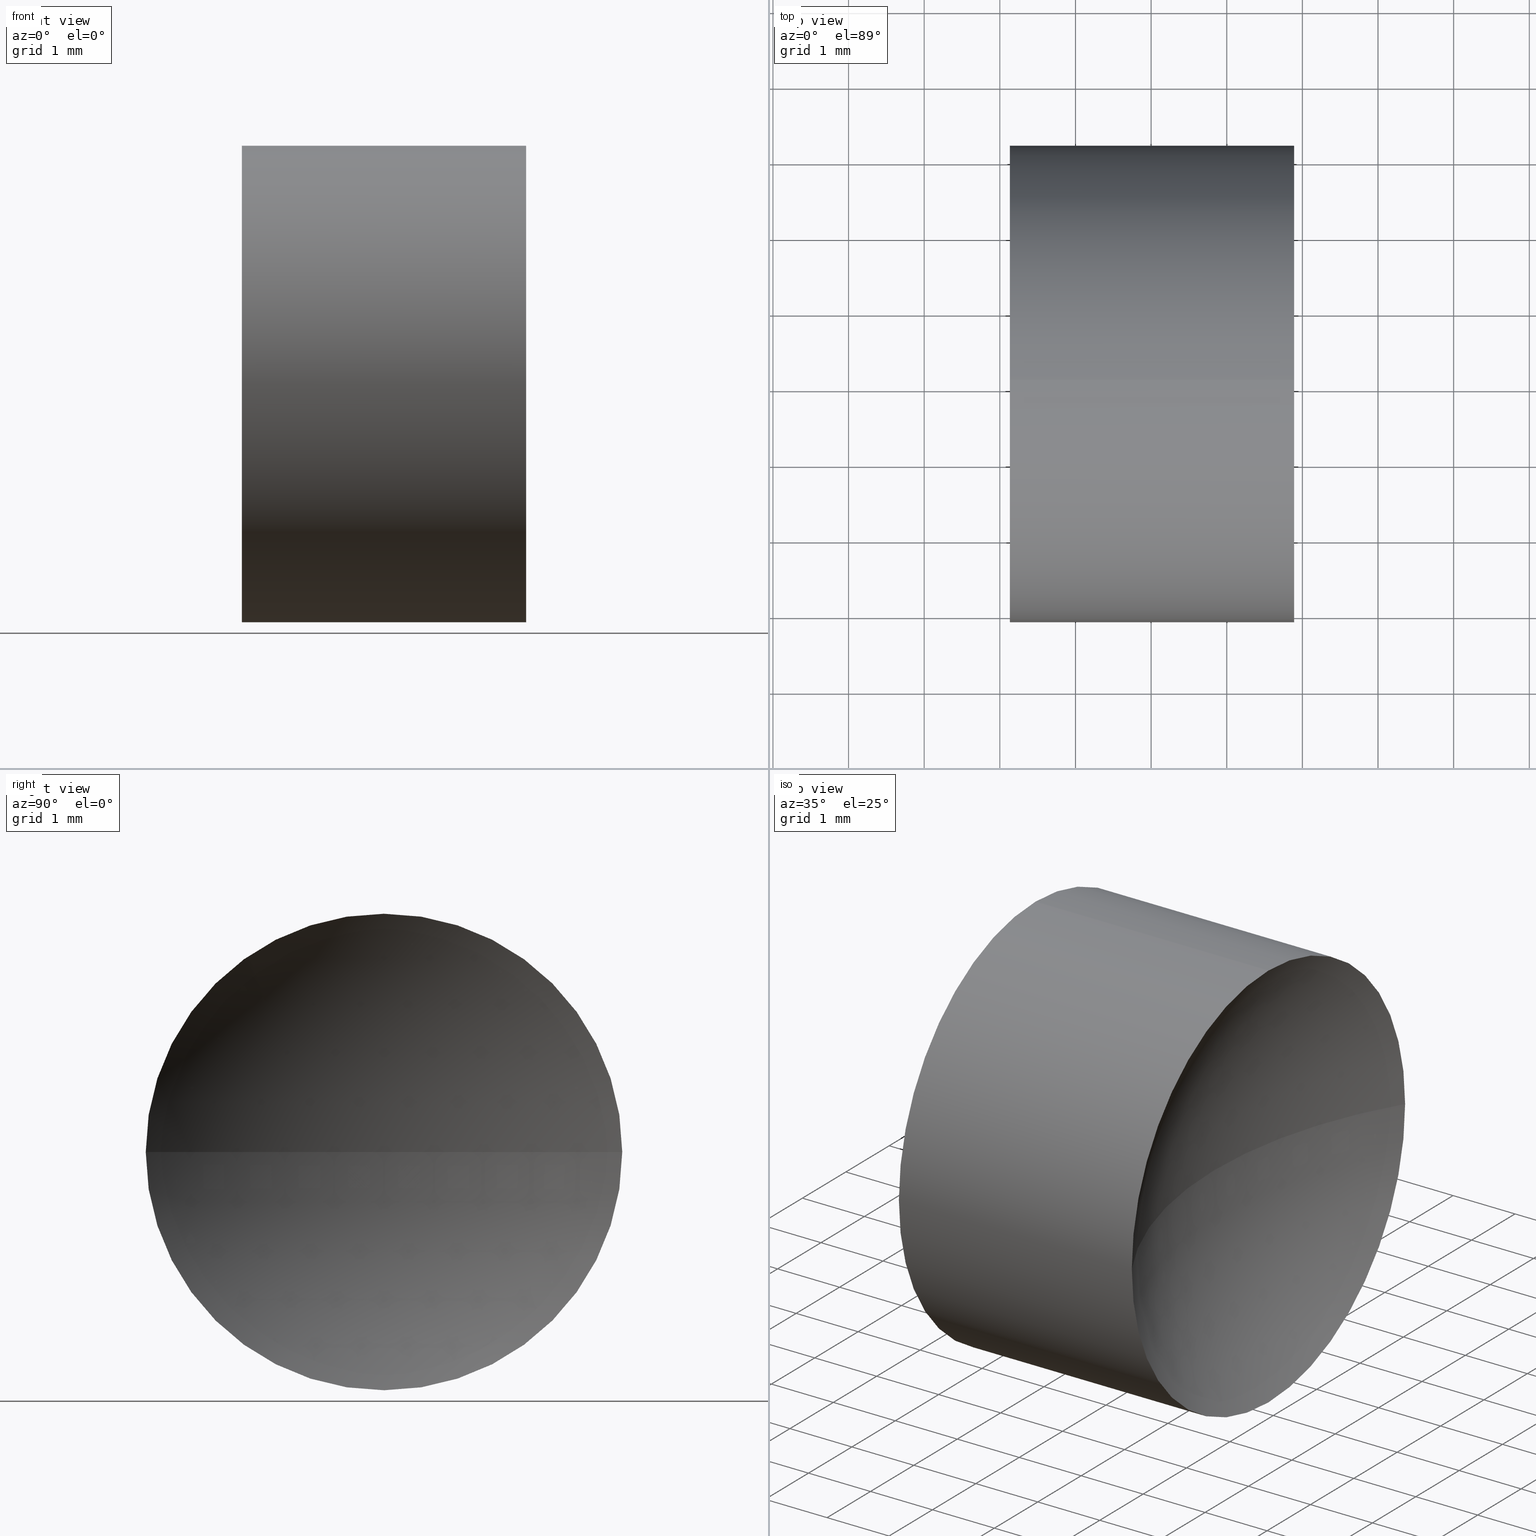
[diagram: canonical four-view strip — front | top / right | iso, engineering-drawing reading convention]
A machine part, canonical four-view strip (front | top / right | iso — engineering-drawing reading convention). The complete STEP part file that produces these views, byte-faithful:
ISO-10303-21;
HEADER;
FILE_DESCRIPTION (( 'STEP AP214' ),
    '1' );
FILE_NAME ('130052.STEP',
    '2019-07-02T02:49:16',
    ( '' ),
    ( '' ),
    'SwSTEP 2.0',
    'SolidWorks 2016',
    '' );
FILE_SCHEMA (( 'AUTOMOTIVE_DESIGN' ));
ENDSEC;

DATA;
#1 =( NAMED_UNIT ( * ) SI_UNIT ( $, .STERADIAN. ) SOLID_ANGLE_UNIT ( ) );
#2 =( LENGTH_UNIT ( ) NAMED_UNIT ( * ) SI_UNIT ( .MILLI., .METRE. ) );
#3 = CYLINDRICAL_SURFACE ( 'NONE', #149, 3.150000000000001700 ) ;
#4 = PRESENTATION_LAYER_ASSIGNMENT (  '', '', ( #12 ) ) ;
#5 = EDGE_CURVE ( 'NONE', #199, #67, #150, .T. ) ;
#6 = AXIS2_PLACEMENT_3D ( 'NONE', #188, #162, #118 ) ;
#7 = VERTEX_POINT ( 'NONE', #131 ) ;
#8 = DIRECTION ( 'NONE',  ( 0.0000000000000000000, -1.224646799147353200E-016, 1.000000000000000000 ) ) ;
#9 = ORIENTED_EDGE ( 'NONE', *, *, #74, .F. ) ;
#10 = CARTESIAN_POINT ( 'NONE',  ( 25.89147788526684100, 13.04452057459747900, 0.0000000000000000000 ) ) ;
#11 = MECHANICAL_DESIGN_GEOMETRIC_PRESENTATION_REPRESENTATION (  '', ( #96 ), #20 ) ;
#12 = STYLED_ITEM ( 'NONE', ( #143 ), #29 ) ;
#13 = CIRCLE ( 'NONE', #128, 3.149999999999998100 ) ;
#14 = VERTEX_POINT ( 'NONE', #225 ) ;
#15 = CARTESIAN_POINT ( 'NONE',  ( 22.13222785822552300, 9.894520574597477100, -3.857637417314163200E-016 ) ) ;
#16 = EDGE_LOOP ( 'NONE', ( #125, #44, #115, #112 ) ) ;
#17 = DIRECTION ( 'NONE',  ( 0.0000000000000000000, 1.000000000000000000, 0.0000000000000000000 ) ) ;
#18 = CARTESIAN_POINT ( 'NONE',  ( 21.22493055706841100, 13.04452057459747900, 3.150000000000001700 ) ) ;
#19 = DIRECTION ( 'NONE',  ( -1.000000000000000000, -0.0000000000000000000, -0.0000000000000000000 ) ) ;
#20 =( GEOMETRIC_REPRESENTATION_CONTEXT ( 3 ) GLOBAL_UNCERTAINTY_ASSIGNED_CONTEXT ( ( #145 ) ) GLOBAL_UNIT_ASSIGNED_CONTEXT ( ( #2, #215, #81 ) ) REPRESENTATION_CONTEXT ( 'NONE', 'WORKASPACE' ) );
#21 = AXIS2_PLACEMENT_3D ( 'NONE', #68, #142, #182 ) ;
#22 = ORIENTED_EDGE ( 'NONE', *, *, #119, .F. ) ;
#23 = CARTESIAN_POINT ( 'NONE',  ( 21.22493055706841100, 13.04452057459747900, 0.0000000000000000000 ) ) ;
#24 = SURFACE_STYLE_FILL_AREA ( #64 ) ;
#25 = FACE_OUTER_BOUND ( 'NONE', #206, .T. ) ;
#26 = DIRECTION ( 'NONE',  ( 0.0000000000000000000, -1.000000000000000000, -1.224646799147353200E-016 ) ) ;
#27 = ORIENTED_EDGE ( 'NONE', *, *, #119, .T. ) ;
#28 =( GEOMETRIC_REPRESENTATION_CONTEXT ( 3 ) GLOBAL_UNCERTAINTY_ASSIGNED_CONTEXT ( ( #209 ) ) GLOBAL_UNIT_ASSIGNED_CONTEXT ( ( #158, #98, #190 ) ) REPRESENTATION_CONTEXT ( 'NONE', 'WORKASPACE' ) );
#29 = ADVANCED_BREP_SHAPE_REPRESENTATION ( '130052', ( #189, #228 ), #172 ) ;
#30 = CIRCLE ( 'NONE', #212, 3.149999999999998100 ) ;
#31 = AXIS2_PLACEMENT_3D ( 'NONE', #90, #110, #184 ) ;
#32 = AXIS2_PLACEMENT_3D ( 'NONE', #135, #95, #213 ) ;
#33 = PRODUCT_DEFINITION ( 'δ֪', '', #203, #222 ) ;
#34 = ORIENTED_EDGE ( 'NONE', *, *, #126, .T. ) ;
#35 = FILL_AREA_STYLE ('',( #65 ) ) ;
#36 = SURFACE_STYLE_USAGE ( .BOTH. , #138 ) ;
#37 = APPLICATION_PROTOCOL_DEFINITION ( 'draft international standard', 'automotive_design', 1998, #47 ) ;
#38 = CIRCLE ( 'NONE', #202, 3.150000000000001700 ) ;
#39 = ORIENTED_EDGE ( 'NONE', *, *, #79, .F. ) ;
#40 = DIRECTION ( 'NONE',  ( -1.000000000000000000, -0.0000000000000000000, -0.0000000000000000000 ) ) ;
#41 = DIRECTION ( 'NONE',  ( -1.000000000000000000, -0.0000000000000000000, -0.0000000000000000000 ) ) ;
#42 = VECTOR ( 'NONE', #61, 1000.000000000000000 ) ;
#43 = AXIS2_PLACEMENT_3D ( 'NONE', #140, #178, #17 ) ;
#44 = ORIENTED_EDGE ( 'NONE', *, *, #86, .T. ) ;
#45 = CARTESIAN_POINT ( 'NONE',  ( 16.93185287174618000, 13.04452057459747900, 0.0000000000000000000 ) ) ;
#46 = DIRECTION ( 'NONE',  ( 0.0000000000000000000, 0.0000000000000000000, 1.000000000000000000 ) ) ;
#47 = APPLICATION_CONTEXT ( 'automotive_design' ) ;
#48 = CARTESIAN_POINT ( 'NONE',  ( 21.22493055706841100, 13.04452057459747900, 0.0000000000000000000 ) ) ;
#49 = DIRECTION ( 'NONE',  ( 1.000000000000000000, 0.0000000000000000000, 0.0000000000000000000 ) ) ;
#50 = ORIENTED_EDGE ( 'NONE', *, *, #93, .T. ) ;
#51 = DIRECTION ( 'NONE',  ( -1.000000000000000000, -0.0000000000000000000, -0.0000000000000000000 ) ) ;
#52 = FACE_OUTER_BOUND ( 'NONE', #141, .T. ) ;
#53 = CARTESIAN_POINT ( 'NONE',  ( 31.09185287174618400, 13.04452057459747900, 0.0000000000000000000 ) ) ;
#54 = VERTEX_POINT ( 'NONE', #167 ) ;
#55 = DIRECTION ( 'NONE',  ( -1.000000000000000000, -0.0000000000000000000, -0.0000000000000000000 ) ) ;
#56 = ADVANCED_FACE ( 'NONE', ( #52 ), #208, .F. ) ;
#57 = SPHERICAL_SURFACE ( 'NONE', #43, 6.080000000000001800 ) ;
#58 = FACE_OUTER_BOUND ( 'NONE', #16, .T. ) ;
#59 = UNCERTAINTY_MEASURE_WITH_UNIT (LENGTH_MEASURE( 1.000000000000000100E-005 ), #195, 'distance_accuracy_value', 'NONE');
#60 = ORIENTED_EDGE ( 'NONE', *, *, #170, .F. ) ;
#61 = DIRECTION ( 'NONE',  ( -1.000000000000000000, -0.0000000000000000000, -0.0000000000000000000 ) ) ;
#62 = FACE_OUTER_BOUND ( 'NONE', #201, .T. ) ;
#63 = CARTESIAN_POINT ( 'NONE',  ( 25.89147788526684100, 13.04452057459747900, 3.149999999999998100 ) ) ;
#64 = FILL_AREA_STYLE ('',( #176 ) ) ;
#65 = FILL_AREA_STYLE_COLOUR ( '', #114 ) ;
#66 = DIRECTION ( 'NONE',  ( 0.0000000000000000000, 0.0000000000000000000, -1.000000000000000000 ) ) ;
#67 = VERTEX_POINT ( 'NONE', #111 ) ;
#68 = CARTESIAN_POINT ( 'NONE',  ( 25.89147788526684100, 13.04452057459747900, 0.0000000000000000000 ) ) ;
#69 = VERTEX_POINT ( 'NONE', #108 ) ;
#70 = EDGE_CURVE ( 'NONE', #199, #229, #30, .T. ) ;
#71 = EDGE_CURVE ( 'NONE', #14, #7, #155, .T. ) ;
#72 = CIRCLE ( 'NONE', #6, 6.080000000000000100 ) ;
#73 = ORIENTED_EDGE ( 'NONE', *, *, #93, .F. ) ;
#74 = EDGE_CURVE ( 'NONE', #229, #99, #105, .T. ) ;
#75 = ADVANCED_FACE ( 'NONE', ( #62 ), #3, .T. ) ;
#76 = ORIENTED_EDGE ( 'NONE', *, *, #157, .F. ) ;
#77 = CARTESIAN_POINT ( 'NONE',  ( 25.89147788526684100, 13.04452057459747900, 0.0000000000000000000 ) ) ;
#78 = CARTESIAN_POINT ( 'NONE',  ( 31.09185287174618400, 13.04452057459747900, 0.0000000000000000000 ) ) ;
#79 = EDGE_CURVE ( 'NONE', #148, #199, #83, .T. ) ;
#80 = CARTESIAN_POINT ( 'NONE',  ( 21.22493055706841100, 13.04452057459747900, -3.150000000000001700 ) ) ;
#81 =( NAMED_UNIT ( * ) SI_UNIT ( $, .STERADIAN. ) SOLID_ANGLE_UNIT ( ) );
#82 = DIRECTION ( 'NONE',  ( 0.0000000000000000000, 1.000000000000000000, 0.0000000000000000000 ) ) ;
#83 = CIRCLE ( 'NONE', #186, 3.149999999999998100 ) ;
#84 = DIRECTION ( 'NONE',  ( -1.000000000000000000, -0.0000000000000000000, -0.0000000000000000000 ) ) ;
#85 = ORIENTED_EDGE ( 'NONE', *, *, #71, .F. ) ;
#86 = EDGE_CURVE ( 'NONE', #54, #160, #72, .T. ) ;
#87 = AXIS2_PLACEMENT_3D ( 'NONE', #230, #51, #161 ) ;
#88 = SPHERICAL_SURFACE ( 'NONE', #175, 6.080000000000001800 ) ;
#89 = SPHERICAL_SURFACE ( 'NONE', #187, 6.080000000000001800 ) ;
#90 = CARTESIAN_POINT ( 'NONE',  ( 31.09185287174618400, 13.04452057459747900, 0.0000000000000000000 ) ) ;
#91 = EDGE_CURVE ( 'NONE', #99, #148, #13, .T. ) ;
#92 = PRODUCT_RELATED_PRODUCT_CATEGORY ( 'part', '', ( #137 ) ) ;
#93 = EDGE_CURVE ( 'NONE', #148, #69, #210, .T. ) ;
#94 = ORIENTED_EDGE ( 'NONE', *, *, #5, .T. ) ;
#95 = DIRECTION ( 'NONE',  ( -1.000000000000000000, -0.0000000000000000000, -0.0000000000000000000 ) ) ;
#96 = STYLED_ITEM ( 'NONE', ( #139 ), #189 ) ;
#97 = DIRECTION ( 'NONE',  ( 0.0000000000000000000, 0.0000000000000000000, 1.000000000000000000 ) ) ;
#98 =( NAMED_UNIT ( * ) PLANE_ANGLE_UNIT ( ) SI_UNIT ( $, .RADIAN. ) );
#99 = VERTEX_POINT ( 'NONE', #173 ) ;
#100 = SURFACE_STYLE_USAGE ( .BOTH. , #193 ) ;
#101 = DIRECTION ( 'NONE',  ( 0.0000000000000000000, 0.0000000000000000000, 1.000000000000000000 ) ) ;
#102 = CARTESIAN_POINT ( 'NONE',  ( 25.89147788526684100, 13.04452057459747900, -3.149999999999998100 ) ) ;
#103 = ORIENTED_EDGE ( 'NONE', *, *, #91, .F. ) ;
#104 = DIRECTION ( 'NONE',  ( 0.0000000000000000000, 0.0000000000000000000, 1.000000000000000000 ) ) ;
#105 = CIRCLE ( 'NONE', #21, 3.149999999999998100 ) ;
#106 = CIRCLE ( 'NONE', #164, 6.080000000000001800 ) ;
#107 = ORIENTED_EDGE ( 'NONE', *, *, #109, .F. ) ;
#108 = CARTESIAN_POINT ( 'NONE',  ( 22.13222785822552300, 13.04452057459747900, 3.150000000000001700 ) ) ;
#109 = EDGE_CURVE ( 'NONE', #229, #7, #159, .T. ) ;
#110 = DIRECTION ( 'NONE',  ( 0.0000000000000000000, 0.0000000000000000000, 1.000000000000000000 ) ) ;
#111 = CARTESIAN_POINT ( 'NONE',  ( 25.01185287174618200, 13.04452057459747900, 0.0000000000000000000 ) ) ;
#112 = ORIENTED_EDGE ( 'NONE', *, *, #170, .T. ) ;
#113 = PRESENTATION_LAYER_ASSIGNMENT (  '', '', ( #96 ) ) ;
#114 = COLOUR_RGB ( '',1.000000000000000000, 1.000000000000000000, 1.000000000000000000 ) ;
#115 = ORIENTED_EDGE ( 'NONE', *, *, #157, .T. ) ;
#116 = ORIENTED_EDGE ( 'NONE', *, *, #79, .T. ) ;
#117 = DIRECTION ( 'NONE',  ( -1.000000000000000000, -0.0000000000000000000, -0.0000000000000000000 ) ) ;
#118 = DIRECTION ( 'NONE',  ( 0.0000000000000000000, 1.000000000000000000, 1.224646799147353500E-016 ) ) ;
#119 = EDGE_CURVE ( 'NONE', #99, #67, #124, .T. ) ;
#120 = CARTESIAN_POINT ( 'NONE',  ( 22.13222785822552300, 13.04452057459747900, 0.0000000000000000000 ) ) ;
#121 = DIRECTION ( 'NONE',  ( 0.0000000000000000000, 0.0000000000000000000, 1.000000000000000000 ) ) ;
#122 = CARTESIAN_POINT ( 'NONE',  ( 25.89147788526684100, 16.19452057459747600, 3.857637417314161700E-016 ) ) ;
#123 = CARTESIAN_POINT ( 'NONE',  ( 16.93185287174618000, 13.04452057459747900, 0.0000000000000000000 ) ) ;
#124 = CIRCLE ( 'NONE', #216, 6.080000000000001800 ) ;
#125 = ORIENTED_EDGE ( 'NONE', *, *, #126, .F. ) ;
#126 = EDGE_CURVE ( 'NONE', #54, #14, #106, .T. ) ;
#127 = DIRECTION ( 'NONE',  ( -1.000000000000000000, -0.0000000000000000000, -0.0000000000000000000 ) ) ;
#128 = AXIS2_PLACEMENT_3D ( 'NONE', #77, #117, #192 ) ;
#129 = CYLINDRICAL_SURFACE ( 'NONE', #227, 3.150000000000001700 ) ;
#130 = ORIENTED_EDGE ( 'NONE', *, *, #91, .T. ) ;
#131 = CARTESIAN_POINT ( 'NONE',  ( 22.13222785822552300, 13.04452057459747900, -3.150000000000001700 ) ) ;
#132 = EDGE_CURVE ( 'NONE', #7, #160, #165, .T. ) ;
#133 = ORIENTED_EDGE ( 'NONE', *, *, #74, .T. ) ;
#134 = DIRECTION ( 'NONE',  ( -1.000000000000000000, 0.0000000000000000000, 0.0000000000000000000 ) ) ;
#135 = CARTESIAN_POINT ( 'NONE',  ( 22.13222785822552300, 13.04452057459747900, 0.0000000000000000000 ) ) ;
#136 =( NAMED_UNIT ( * ) PLANE_ANGLE_UNIT ( ) SI_UNIT ( $, .RADIAN. ) );
#137 = PRODUCT ( '130052', '130052', '', ( #169 ) ) ;
#138 = SURFACE_SIDE_STYLE ('',( #24 ) ) ;
#139 = PRESENTATION_STYLE_ASSIGNMENT (( #100 ) ) ;
#140 = CARTESIAN_POINT ( 'NONE',  ( 16.93185287174618000, 13.04452057459747900, 0.0000000000000000000 ) ) ;
#141 = EDGE_LOOP ( 'NONE', ( #211, #94, #22, #9 ) ) ;
#142 = DIRECTION ( 'NONE',  ( -1.000000000000000000, -0.0000000000000000000, -0.0000000000000000000 ) ) ;
#143 = PRESENTATION_STYLE_ASSIGNMENT (( #36 ) ) ;
#144 = ORIENTED_EDGE ( 'NONE', *, *, #132, .F. ) ;
#145 = UNCERTAINTY_MEASURE_WITH_UNIT (LENGTH_MEASURE( 1.000000000000000100E-005 ), #2, 'distance_accuracy_value', 'NONE');
#146 = FACE_OUTER_BOUND ( 'NONE', #171, .T. ) ;
#147 = ADVANCED_FACE ( 'NONE', ( #146 ), #88, .F. ) ;
#148 = VERTEX_POINT ( 'NONE', #63 ) ;
#149 = AXIS2_PLACEMENT_3D ( 'NONE', #23, #40, #198 ) ;
#150 = CIRCLE ( 'NONE', #196, 6.080000000000001800 ) ;
#151 = ORIENTED_EDGE ( 'NONE', *, *, #86, .F. ) ;
#152 = DIRECTION ( 'NONE',  ( -1.000000000000000000, -0.0000000000000000000, -0.0000000000000000000 ) ) ;
#153 = PRODUCT_DEFINITION_SHAPE ( 'NONE', 'NONE',  #33 ) ;
#154 = CARTESIAN_POINT ( 'NONE',  ( 31.09185287174618400, 13.04452057459747900, 0.0000000000000000000 ) ) ;
#155 = CIRCLE ( 'NONE', #218, 3.150000000000001700 ) ;
#156 = APPLICATION_PROTOCOL_DEFINITION ( 'draft international standard', 'automotive_design', 1998, #231 ) ;
#157 = EDGE_CURVE ( 'NONE', #160, #69, #180, .T. ) ;
#158 =( LENGTH_UNIT ( ) NAMED_UNIT ( * ) SI_UNIT ( .MILLI., .METRE. ) );
#159 = LINE ( 'NONE', #80, #42 ) ;
#160 = VERTEX_POINT ( 'NONE', #15 ) ;
#161 = DIRECTION ( 'NONE',  ( 0.0000000000000000000, 0.0000000000000000000, 1.000000000000000000 ) ) ;
#162 = DIRECTION ( 'NONE',  ( 0.0000000000000000000, 1.224646799147353200E-016, -1.000000000000000000 ) ) ;
#163 = ORIENTED_EDGE ( 'NONE', *, *, #71, .T. ) ;
#164 = AXIS2_PLACEMENT_3D ( 'NONE', #45, #46, #191 ) ;
#165 = CIRCLE ( 'NONE', #32, 3.150000000000001700 ) ;
#166 = ORIENTED_EDGE ( 'NONE', *, *, #109, .T. ) ;
#167 = CARTESIAN_POINT ( 'NONE',  ( 23.01185287174618200, 13.04452057459747900, 0.0000000000000000000 ) ) ;
#168 = SHAPE_DEFINITION_REPRESENTATION ( #153, #29 ) ;
#169 = PRODUCT_CONTEXT ( 'NONE', #47, 'mechanical' ) ;
#170 = EDGE_CURVE ( 'NONE', #69, #14, #38, .T. ) ;
#171 = EDGE_LOOP ( 'NONE', ( #223, #39, #103, #27 ) ) ;
#172 =( GEOMETRIC_REPRESENTATION_CONTEXT ( 3 ) GLOBAL_UNCERTAINTY_ASSIGNED_CONTEXT ( ( #59 ) ) GLOBAL_UNIT_ASSIGNED_CONTEXT ( ( #195, #136, #1 ) ) REPRESENTATION_CONTEXT ( 'NONE', 'WORKASPACE' ) );
#173 = CARTESIAN_POINT ( 'NONE',  ( 25.89147788526684100, 9.894520574597480700, 0.0000000000000000000 ) ) ;
#174 = DIRECTION ( 'NONE',  ( 0.0000000000000000000, -1.000000000000000000, 0.0000000000000000000 ) ) ;
#175 = AXIS2_PLACEMENT_3D ( 'NONE', #154, #121, #174 ) ;
#176 = FILL_AREA_STYLE_COLOUR ( '', #200 ) ;
#177 = CARTESIAN_POINT ( 'NONE',  ( 22.13222785822552300, 13.04452057459747900, 0.0000000000000000000 ) ) ;
#178 = DIRECTION ( 'NONE',  ( 0.0000000000000000000, 0.0000000000000000000, -1.000000000000000000 ) ) ;
#179 = CARTESIAN_POINT ( 'NONE',  ( 0.0000000000000000000, 0.0000000000000000000, 0.0000000000000000000 ) ) ;
#180 = CIRCLE ( 'NONE', #87, 3.150000000000001700 ) ;
#181 = CLOSED_SHELL ( 'NONE', ( #75, #56, #205, #226, #147, #185 ) ) ;
#182 = DIRECTION ( 'NONE',  ( 0.0000000000000000000, 0.0000000000000000000, 1.000000000000000000 ) ) ;
#183 = ORIENTED_EDGE ( 'NONE', *, *, #132, .T. ) ;
#184 = DIRECTION ( 'NONE',  ( 0.0000000000000000000, -1.000000000000000000, 0.0000000000000000000 ) ) ;
#185 = ADVANCED_FACE ( 'NONE', ( #219 ), #129, .T. ) ;
#186 = AXIS2_PLACEMENT_3D ( 'NONE', #221, #41, #194 ) ;
#187 = AXIS2_PLACEMENT_3D ( 'NONE', #123, #66, #82 ) ;
#188 = CARTESIAN_POINT ( 'NONE',  ( 16.93185287174618000, 13.04452057459747900, 0.0000000000000000000 ) ) ;
#189 = MANIFOLD_SOLID_BREP ( '��ת1', #181 ) ;
#190 =( NAMED_UNIT ( * ) SI_UNIT ( $, .STERADIAN. ) SOLID_ANGLE_UNIT ( ) );
#191 = DIRECTION ( 'NONE',  ( 1.000000000000000000, 0.0000000000000000000, 0.0000000000000000000 ) ) ;
#192 = DIRECTION ( 'NONE',  ( 0.0000000000000000000, 0.0000000000000000000, 1.000000000000000000 ) ) ;
#193 = SURFACE_SIDE_STYLE ('',( #204 ) ) ;
#194 = DIRECTION ( 'NONE',  ( 0.0000000000000000000, 0.0000000000000000000, 1.000000000000000000 ) ) ;
#195 =( LENGTH_UNIT ( ) NAMED_UNIT ( * ) SI_UNIT ( .MILLI., .METRE. ) );
#196 = AXIS2_PLACEMENT_3D ( 'NONE', #53, #8, #26 ) ;
#197 = VECTOR ( 'NONE', #152, 1000.000000000000000 ) ;
#198 = DIRECTION ( 'NONE',  ( 0.0000000000000000000, 0.0000000000000000000, 1.000000000000000000 ) ) ;
#199 = VERTEX_POINT ( 'NONE', #122 ) ;
#200 = COLOUR_RGB ( '',1.000000000000000000, 1.000000000000000000, 1.000000000000000000 ) ;
#201 = EDGE_LOOP ( 'NONE', ( #214, #166, #85, #60, #73, #116 ) ) ;
#202 = AXIS2_PLACEMENT_3D ( 'NONE', #120, #84, #101 ) ;
#203 = PRODUCT_DEFINITION_FORMATION_WITH_SPECIFIED_SOURCE ( '�κ�', '', #137, .NOT_KNOWN. ) ;
#204 = SURFACE_STYLE_FILL_AREA ( #35 ) ;
#205 = ADVANCED_FACE ( 'NONE', ( #58 ), #57, .F. ) ;
#206 = EDGE_LOOP ( 'NONE', ( #151, #34, #163, #183 ) ) ;
#207 = DIRECTION ( 'NONE',  ( 0.0000000000000000000, 0.0000000000000000000, 1.000000000000000000 ) ) ;
#208 = SPHERICAL_SURFACE ( 'NONE', #31, 6.080000000000001800 ) ;
#209 = UNCERTAINTY_MEASURE_WITH_UNIT (LENGTH_MEASURE( 1.000000000000000100E-005 ), #158, 'distance_accuracy_value', 'NONE');
#210 = LINE ( 'NONE', #18, #197 ) ;
#211 = ORIENTED_EDGE ( 'NONE', *, *, #70, .F. ) ;
#212 = AXIS2_PLACEMENT_3D ( 'NONE', #10, #55, #207 ) ;
#213 = DIRECTION ( 'NONE',  ( 0.0000000000000000000, 0.0000000000000000000, 1.000000000000000000 ) ) ;
#214 = ORIENTED_EDGE ( 'NONE', *, *, #70, .T. ) ;
#215 =( NAMED_UNIT ( * ) PLANE_ANGLE_UNIT ( ) SI_UNIT ( $, .RADIAN. ) );
#216 = AXIS2_PLACEMENT_3D ( 'NONE', #78, #232, #134 ) ;
#217 = DIRECTION ( 'NONE',  ( 0.0000000000000000000, 0.0000000000000000000, 1.000000000000000000 ) ) ;
#218 = AXIS2_PLACEMENT_3D ( 'NONE', #177, #127, #104 ) ;
#219 = FACE_OUTER_BOUND ( 'NONE', #220, .T. ) ;
#220 = EDGE_LOOP ( 'NONE', ( #107, #133, #130, #50, #76, #144 ) ) ;
#221 = CARTESIAN_POINT ( 'NONE',  ( 25.89147788526684100, 13.04452057459747900, 0.0000000000000000000 ) ) ;
#222 = PRODUCT_DEFINITION_CONTEXT ( 'detailed design', #231, 'design' ) ;
#223 = ORIENTED_EDGE ( 'NONE', *, *, #5, .F. ) ;
#224 = MECHANICAL_DESIGN_GEOMETRIC_PRESENTATION_REPRESENTATION (  '', ( #12 ), #28 ) ;
#225 = CARTESIAN_POINT ( 'NONE',  ( 22.13222785822552300, 16.19452057459747600, 0.0000000000000000000 ) ) ;
#226 = ADVANCED_FACE ( 'NONE', ( #25 ), #89, .F. ) ;
#227 = AXIS2_PLACEMENT_3D ( 'NONE', #48, #19, #97 ) ;
#228 = AXIS2_PLACEMENT_3D ( 'NONE', #179, #217, #49 ) ;
#229 = VERTEX_POINT ( 'NONE', #102 ) ;
#230 = CARTESIAN_POINT ( 'NONE',  ( 22.13222785822552300, 13.04452057459747900, 0.0000000000000000000 ) ) ;
#231 = APPLICATION_CONTEXT ( 'automotive_design' ) ;
#232 = DIRECTION ( 'NONE',  ( 0.0000000000000000000, 0.0000000000000000000, -1.000000000000000000 ) ) ;
ENDSEC;
END-ISO-10303-21;
